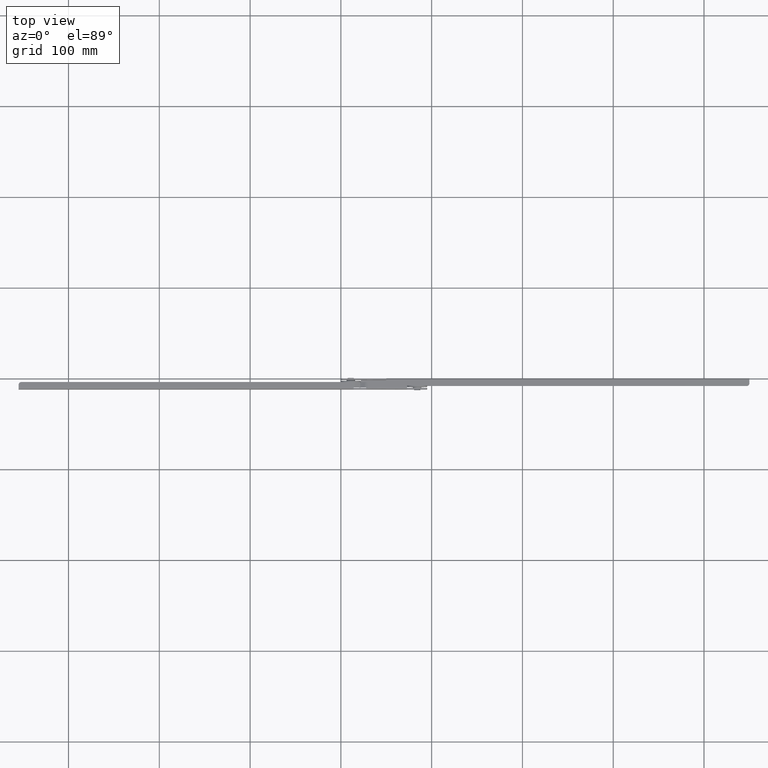
[diagram: clean part render]
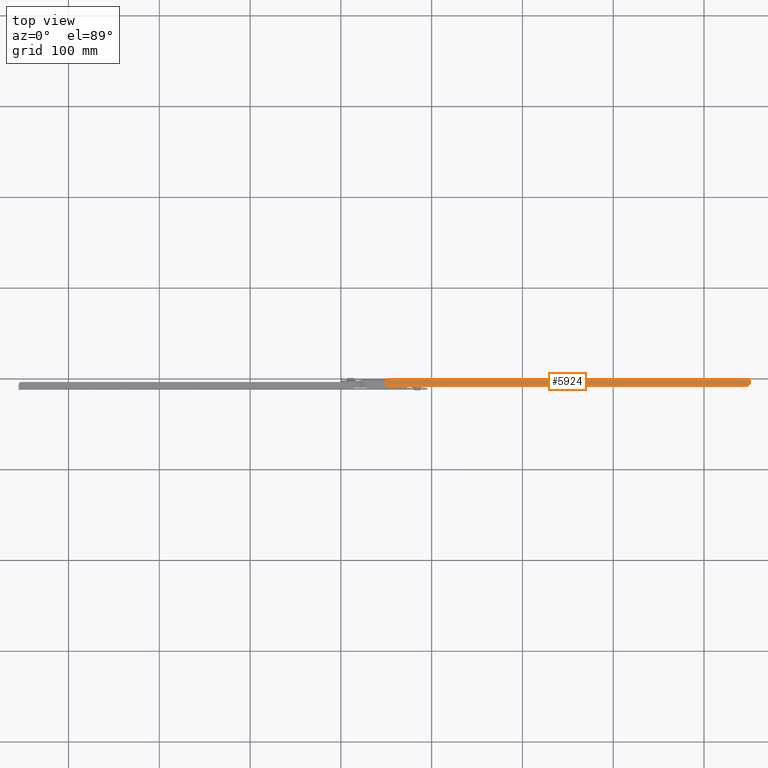
[diagram: same view with one face highlighted and labeled with its STEP entity id]
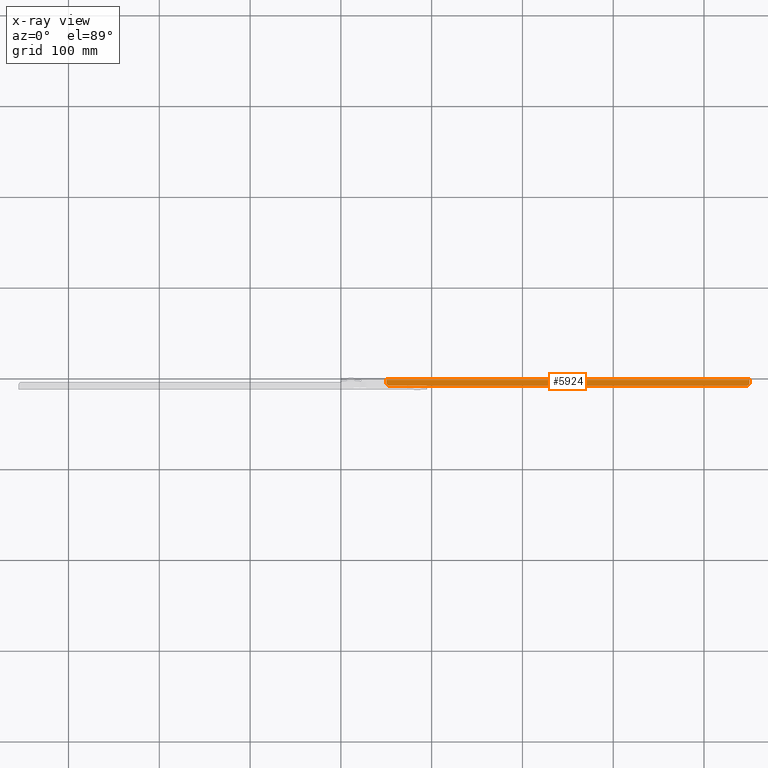
[diagram: x-ray of the same camera — body ghosted, the highlighted face saturated]
A machine part, top view. The second image highlights one B-rep face of the part: STEP entity #5924.
The next image is the same camera in x-ray: the body ghosted, the highlighted face saturated — about 0% of this face is hidden behind the body in this view.
In plain terms, the highlighted face is a freeform B-spline surface patch.
Its self-contained STEP definition (entity closure, byte-faithful):
#5081=CARTESIAN_POINT('',(50.0,-5.0,6.000000000000201));
#5082=VERTEX_POINT('',#5081);
#5083=CARTESIAN_POINT('',(53.0,-8.0,6.000000000000201));
#5084=VERTEX_POINT('',#5083);
#5085=CARTESIAN_POINT('',(49.999999999999993,-5.0,6.000000000000201));
#5086=CARTESIAN_POINT('',(49.999999999999986,-8.0,6.000000000000202));
#5087=CARTESIAN_POINT('',(53.0,-8.0,6.000000000000201));
#5095=(BOUNDED_CURVE()B_SPLINE_CURVE(2,(#5085,#5086,#5087),.UNSPECIFIED.,.F.,.U.)CURVE()GEOMETRIC_REPRESENTATION_ITEM()QUASI_UNIFORM_CURVE()RATIONAL_B_SPLINE_CURVE((1.0,0.707106781186548,1.0))REPRESENTATION_ITEM(''));
#5096=EDGE_CURVE('',#5082,#5084,#5095,.T.);
#5264=CARTESIAN_POINT('',(447.0,-8.0,6.000000000000201));
#5265=VERTEX_POINT('',#5264);
#5266=CARTESIAN_POINT('',(450.0,-5.0,6.000000000000201));
#5267=VERTEX_POINT('',#5266);
#5268=CARTESIAN_POINT('',(447.0,-8.0,6.000000000000201));
#5269=CARTESIAN_POINT('',(450.0,-8.0,6.000000000000202));
#5270=CARTESIAN_POINT('',(450.0,-5.0,6.000000000000201));
#5278=(BOUNDED_CURVE()B_SPLINE_CURVE(2,(#5268,#5269,#5270),.UNSPECIFIED.,.F.,.U.)CURVE()GEOMETRIC_REPRESENTATION_ITEM()QUASI_UNIFORM_CURVE()RATIONAL_B_SPLINE_CURVE((1.0,0.707106781186548,1.0))REPRESENTATION_ITEM(''));
#5279=EDGE_CURVE('',#5265,#5267,#5278,.T.);
#5474=CARTESIAN_POINT('',(50.0,-1.599999999999910,6.000000000000201));
#5475=VERTEX_POINT('',#5474);
#5476=CARTESIAN_POINT('',(50.0,-1.599999999999910,6.000000000000201));
#5477=CARTESIAN_POINT('',(50.0,-5.0,6.000000000000201));
#5478=QUASI_UNIFORM_CURVE('',1,(#5476,#5477),.UNSPECIFIED.,.F.,.U.);
#5479=EDGE_CURVE('',#5475,#5082,#5478,.T.);
#5586=CARTESIAN_POINT('',(450.0,-1.599999999999910,6.000000000000201));
#5587=VERTEX_POINT('',#5586);
#5588=CARTESIAN_POINT('',(450.0,-1.599999999999910,6.000000000000201));
#5589=CARTESIAN_POINT('',(450.0,-5.0,6.000000000000201));
#5590=QUASI_UNIFORM_CURVE('',1,(#5588,#5589),.UNSPECIFIED.,.F.,.U.);
#5591=EDGE_CURVE('',#5587,#5267,#5590,.T.);
#5679=CARTESIAN_POINT('',(450.0,-1.599999999999910,6.000000000000201));
#5680=CARTESIAN_POINT('',(50.0,-1.599999999999910,6.000000000000201));
#5681=QUASI_UNIFORM_CURVE('',1,(#5679,#5680),.UNSPECIFIED.,.F.,.U.);
#5682=EDGE_CURVE('',#5587,#5475,#5681,.T.);
#5902=CARTESIAN_POINT('',(447.0,-8.0,6.000000000000201));
#5903=CARTESIAN_POINT('',(53.0,-8.0,6.000000000000201));
#5904=QUASI_UNIFORM_CURVE('',1,(#5902,#5903),.UNSPECIFIED.,.F.,.U.);
#5905=EDGE_CURVE('',#5265,#5084,#5904,.T.);
#5911=CARTESIAN_POINT('',(30.020000775277659,-8.319679987595562,6.000000000000201));
#5912=CARTESIAN_POINT('',(30.020000775277669,-1.280319840742970,6.000000000000201));
#5913=CARTESIAN_POINT('',(469.980009953558410,-8.319679987595562,6.000000000000201));
#5914=CARTESIAN_POINT('',(469.980009953558410,-1.280319840742970,6.000000000000201));
#5915=B_SPLINE_SURFACE_WITH_KNOTS('',1,1,((#5911,#5913),(#5912,#5914)),.UNSPECIFIED.,.F.,.F.,.U.,(2,2),(2,2),(0.0,7.039360146852591),(0.0,439.960009178280810),.UNSPECIFIED.);
#5916=ORIENTED_EDGE('',*,*,#5905,.F.);
#5917=ORIENTED_EDGE('',*,*,#5279,.T.);
#5918=ORIENTED_EDGE('',*,*,#5591,.F.);
#5919=ORIENTED_EDGE('',*,*,#5682,.T.);
#5920=ORIENTED_EDGE('',*,*,#5479,.T.);
#5921=ORIENTED_EDGE('',*,*,#5096,.T.);
#5922=EDGE_LOOP('',(#5916,#5917,#5918,#5919,#5920,#5921));
#5923=FACE_OUTER_BOUND('',#5922,.T.);
#5924=ADVANCED_FACE('',(#5923),#5915,.F.);